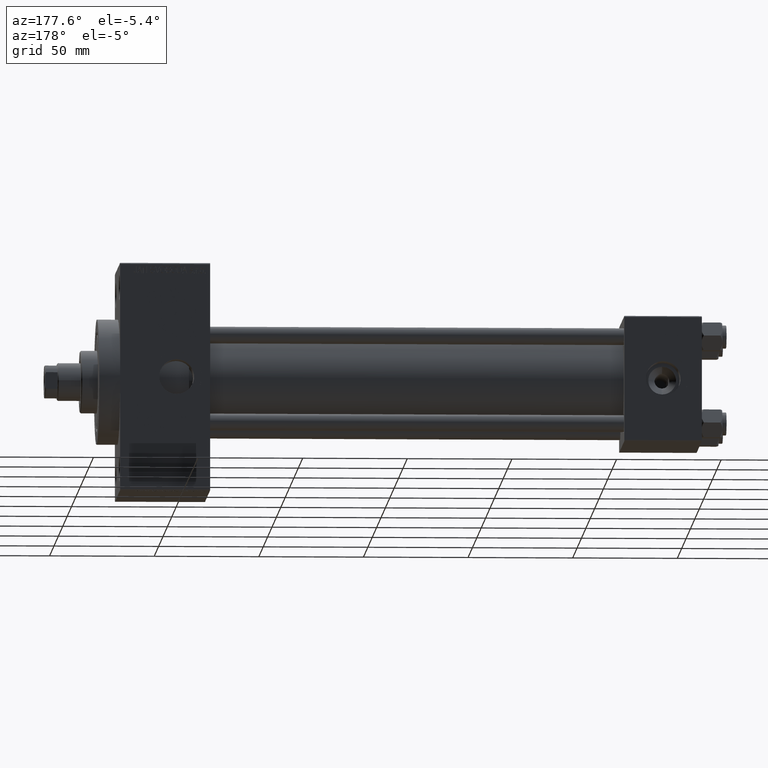
[diagram: clean part render]
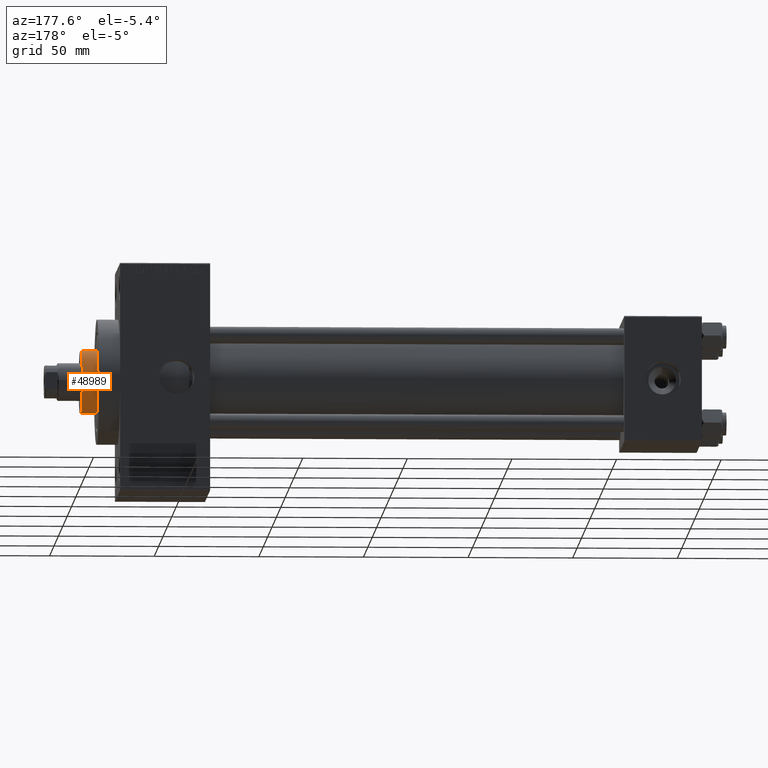
[diagram: same view with one face highlighted and labeled with its STEP entity id]
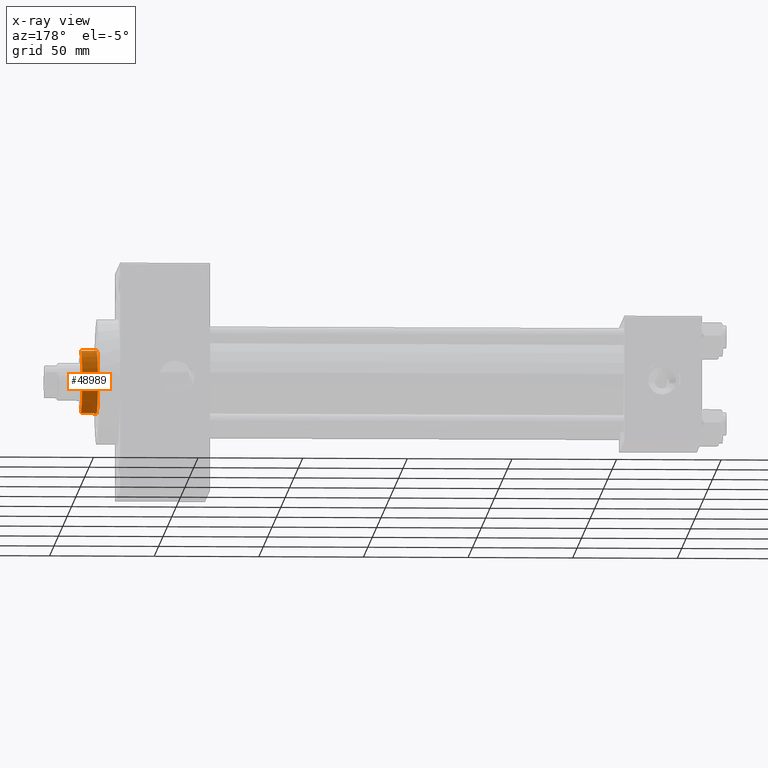
[diagram: x-ray of the same camera — body ghosted, the highlighted face saturated]
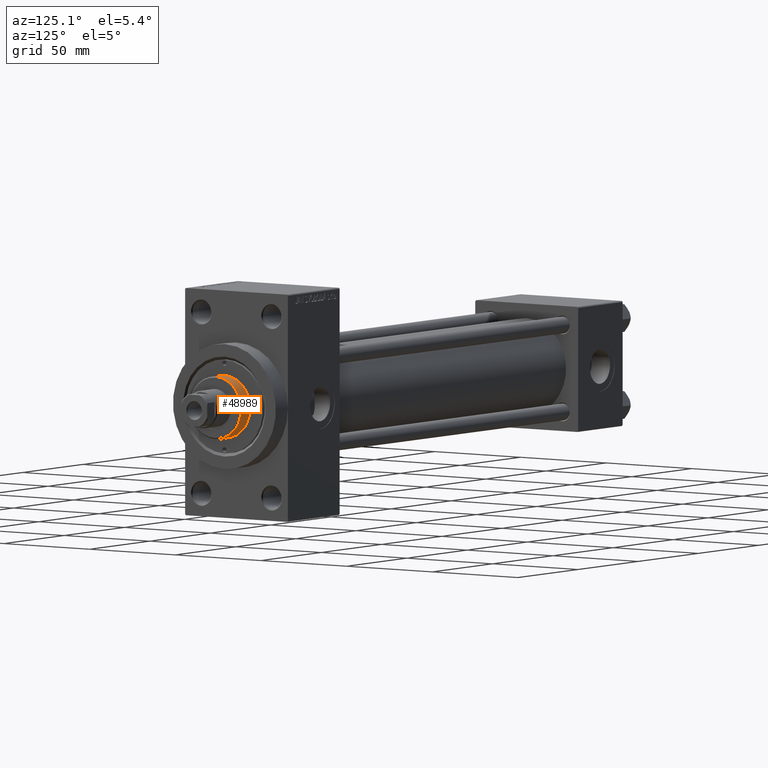
[diagram: same view with one face highlighted and labeled with its STEP entity id]
A machine part, auxiliary view. The second image highlights one B-rep face of the part: STEP entity #48989.
The next image is the same camera in x-ray: the body ghosted, the highlighted face saturated — about 0% of this face is hidden behind the body in this view.
A second angle (auxiliary view) of the same face is appended — the face is thin or edge-on in the first view.
In plain terms, the highlighted cylindrical surface (edge-blend (fillet) strip) has radius 15 mm, axis along (-1, 0, 0).
Its self-contained STEP definition (entity closure, byte-faithful):
#720 = ORIENTED_EDGE ( 'NONE', *, *, #7043, .T. ) ;
#2889 = DIRECTION ( 'NONE',  ( 0.000000000000000000, 0.000000000000000000, -1.000000000000000000 ) ) ;
#3548 = AXIS2_PLACEMENT_3D ( 'NONE', #14974, #30264, #6503 ) ;
#6503 = DIRECTION ( 'NONE',  ( -1.000000000000000000, 0.000000000000000000, 0.000000000000000000 ) ) ;
#6545 = CARTESIAN_POINT ( 'NONE',  ( 15.00000000000000000, 1.836970198721029589E-15, 43.25999999999999801 ) ) ;
#7043 = EDGE_CURVE ( 'NONE', #27493, #40126, #10832, .T. ) ;
#7115 = CARTESIAN_POINT ( 'NONE',  ( 15.00000000000000000, 1.836970198721029589E-15, 51.25999999999999801 ) ) ;
#9607 = CIRCLE ( 'NONE', #42397, 15.00000000000000000 ) ;
#9753 = ORIENTED_EDGE ( 'NONE', *, *, #11370, .F. ) ;
#10832 = CIRCLE ( 'NONE', #45231, 15.00000000000000000 ) ;
#11370 = EDGE_CURVE ( 'NONE', #31555, #40126, #14624, .T. ) ;
#13895 = DIRECTION ( 'NONE',  ( 1.000000000000000000, 0.000000000000000000, 0.000000000000000000 ) ) ;
#14624 = LINE ( 'NONE', #7115, #42043 ) ;
#14974 = CARTESIAN_POINT ( 'NONE',  ( 0.000000000000000000, 0.000000000000000000, 51.25999999999999801 ) ) ;
#15060 = ORIENTED_EDGE ( 'NONE', *, *, #27398, .T. ) ;
#17985 = DIRECTION ( 'NONE',  ( -0.000000000000000000, -0.000000000000000000, -1.000000000000000000 ) ) ;
#18964 = CARTESIAN_POINT ( 'NONE',  ( -15.00000000000000000, 0.000000000000000000, 43.25999999999999801 ) ) ;
#21763 = EDGE_CURVE ( 'NONE', #31555, #47316, #9607, .T. ) ;
#22379 = DIRECTION ( 'NONE',  ( -0.000000000000000000, -0.000000000000000000, -1.000000000000000000 ) ) ;
#26459 = CARTESIAN_POINT ( 'NONE',  ( 15.00000000000000000, 1.836970198721029589E-15, 50.75999999999998380 ) ) ;
#27398 = EDGE_CURVE ( 'NONE', #47316, #27493, #41028, .T. ) ;
#27493 = VERTEX_POINT ( 'NONE', #18964 ) ;
#28607 = VECTOR ( 'NONE', #17985, 1000.000000000000000 ) ;
#29532 = CYLINDRICAL_SURFACE ( 'NONE', #3548, 15.00000000000000000 ) ;
#30023 = FACE_OUTER_BOUND ( 'NONE', #42083, .T. ) ;
#30264 = DIRECTION ( 'NONE',  ( -0.000000000000000000, -0.000000000000000000, -1.000000000000000000 ) ) ;
#30536 = DIRECTION ( 'NONE',  ( 0.000000000000000000, 0.000000000000000000, 1.000000000000000000 ) ) ;
#31555 = VERTEX_POINT ( 'NONE', #26459 ) ;
#37763 = CARTESIAN_POINT ( 'NONE',  ( -15.00000000000000000, 0.000000000000000000, 51.25999999999999801 ) ) ;
#38126 = CARTESIAN_POINT ( 'NONE',  ( -15.00000000000000000, 0.000000000000000000, 50.75999999999998380 ) ) ;
#39086 = ORIENTED_EDGE ( 'NONE', *, *, #21763, .T. ) ;
#40126 = VERTEX_POINT ( 'NONE', #6545 ) ;
#41028 = LINE ( 'NONE', #37763, #28607 ) ;
#42043 = VECTOR ( 'NONE', #22379, 1000.000000000000000 ) ;
#42083 = EDGE_LOOP ( 'NONE', ( #9753, #39086, #15060, #720 ) ) ;
#42397 = AXIS2_PLACEMENT_3D ( 'NONE', #48205, #2889, #13895 ) ;
#42793 = CARTESIAN_POINT ( 'NONE',  ( 0.000000000000000000, 0.000000000000000000, 43.25999999999999801 ) ) ;
#45231 = AXIS2_PLACEMENT_3D ( 'NONE', #42793, #30536, #45801 ) ;
#45801 = DIRECTION ( 'NONE',  ( 1.000000000000000000, 0.000000000000000000, 0.000000000000000000 ) ) ;
#47316 = VERTEX_POINT ( 'NONE', #38126 ) ;
#48205 = CARTESIAN_POINT ( 'NONE',  ( 0.000000000000000000, 0.000000000000000000, 50.75999999999998380 ) ) ;
#48989 = ADVANCED_FACE ( 'NONE', ( #30023 ), #29532, .T. ) ;